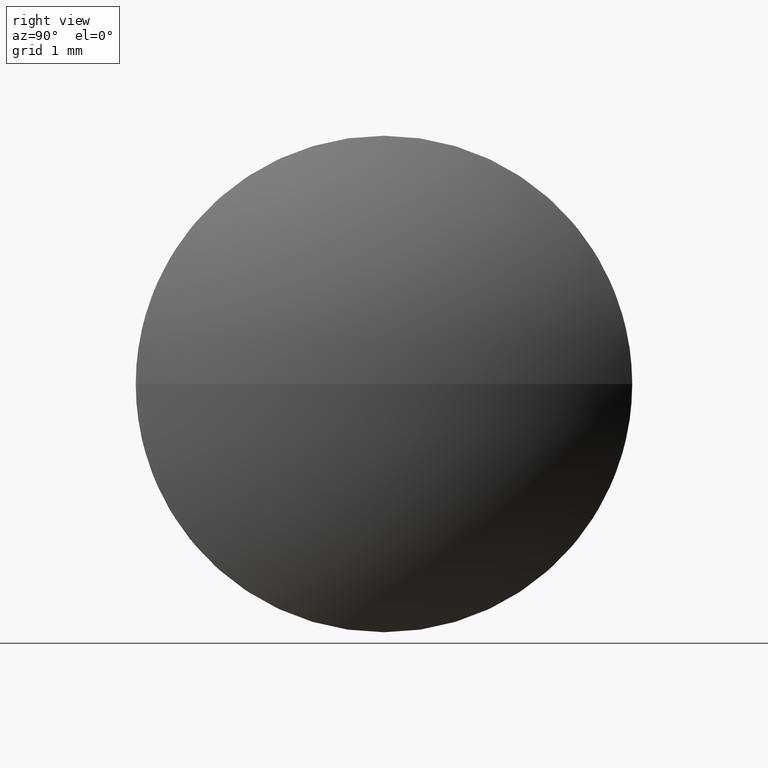
[diagram: clean part render]
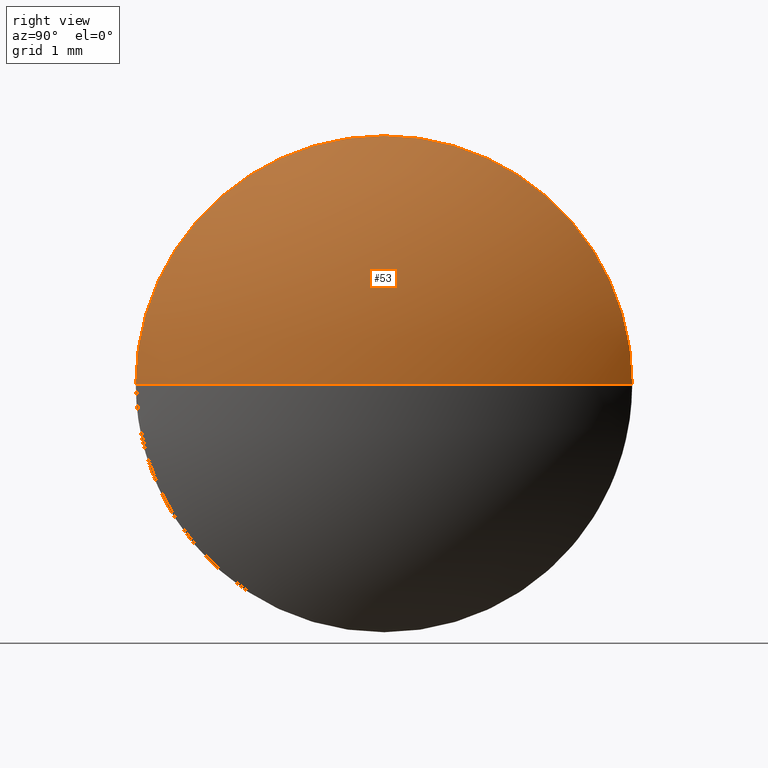
[diagram: same view with one face highlighted and labeled with its STEP entity id]
A machine part, right view. The second image highlights one B-rep face of the part: STEP entity #53.
In plain terms, the highlighted spherical surface has radius 5.1717 mm.
Its self-contained STEP definition (entity closure, byte-faithful):
#10 = CARTESIAN_POINT ( 'NONE',  ( 353.1020176784387000, 25.04791477200547300, 0.0000000000000000000 ) ) ;
#13 = CARTESIAN_POINT ( 'NONE',  ( 349.0003662362582900, 25.04791477200545200, 0.0000000000000000000 ) ) ;
#25 = CARTESIAN_POINT ( 'NONE',  ( 354.1720240510349500, 25.04791477200545200, 0.0000000000000000000 ) ) ;
#29 = VERTEX_POINT ( 'NONE', #132 ) ;
#37 = ORIENTED_EDGE ( 'NONE', *, *, #168, .F. ) ;
#38 = CARTESIAN_POINT ( 'NONE',  ( 353.1020176784387000, 21.89791477200547100, -3.857637417314142000E-016 ) ) ;
#41 = EDGE_CURVE ( 'NONE', #91, #60, #64, .T. ) ;
#46 = FACE_OUTER_BOUND ( 'NONE', #139, .T. ) ;
#50 = ORIENTED_EDGE ( 'NONE', *, *, #161, .T. ) ;
#53 = ADVANCED_FACE ( 'NONE', ( #46 ), #78, .T. ) ;
#59 = DIRECTION ( 'NONE',  ( -0.0000000000000000000, 0.0000000000000000000, 1.000000000000000000 ) ) ;
#60 = VERTEX_POINT ( 'NONE', #65 ) ;
#63 = DIRECTION ( 'NONE',  ( -0.0000000000000000000, 0.0000000000000000000, -1.000000000000000000 ) ) ;
#64 = CIRCLE ( 'NONE', #111, 3.149999999999996400 ) ;
#65 = CARTESIAN_POINT ( 'NONE',  ( 353.1020176784387000, 25.04791477200547300, 3.149999999999996400 ) ) ;
#66 = ORIENTED_EDGE ( 'NONE', *, *, #67, .F. ) ;
#67 = EDGE_CURVE ( 'NONE', #128, #91, #167, .T. ) ;
#71 = DIRECTION ( 'NONE',  ( 0.0000000000000000000, 0.0000000000000000000, 1.000000000000000000 ) ) ;
#78 = SPHERICAL_SURFACE ( 'NONE', #90, 5.171657814776648500 ) ;
#82 = DIRECTION ( 'NONE',  ( -1.000000000000000000, -0.0000000000000000000, -0.0000000000000000000 ) ) ;
#85 = AXIS2_PLACEMENT_3D ( 'NONE', #144, #156, #114 ) ;
#89 = DIRECTION ( 'NONE',  ( 1.000000000000000000, 0.0000000000000000000, 0.0000000000000000000 ) ) ;
#90 = AXIS2_PLACEMENT_3D ( 'NONE', #13, #63, #93 ) ;
#91 = VERTEX_POINT ( 'NONE', #38 ) ;
#93 = DIRECTION ( 'NONE',  ( 0.0000000000000000000, 1.000000000000000000, 0.0000000000000000000 ) ) ;
#96 = DIRECTION ( 'NONE',  ( 0.0000000000000000000, 0.0000000000000000000, 1.000000000000000000 ) ) ;
#103 = CARTESIAN_POINT ( 'NONE',  ( 353.1020176784387000, 25.04791477200547300, 0.0000000000000000000 ) ) ;
#111 = AXIS2_PLACEMENT_3D ( 'NONE', #10, #82, #96 ) ;
#114 = DIRECTION ( 'NONE',  ( 0.0000000000000000000, 1.000000000000000000, 1.224646799147353200E-016 ) ) ;
#126 = CIRCLE ( 'NONE', #151, 5.171657814776631700 ) ;
#128 = VERTEX_POINT ( 'NONE', #25 ) ;
#132 = CARTESIAN_POINT ( 'NONE',  ( 353.1020176784387000, 28.19791477200545800, 0.0000000000000000000 ) ) ;
#139 = EDGE_LOOP ( 'NONE', ( #66, #50, #37, #184 ) ) ;
#144 = CARTESIAN_POINT ( 'NONE',  ( 349.0003662362582900, 25.04791477200545200, 0.0000000000000000000 ) ) ;
#149 = CIRCLE ( 'NONE', #186, 3.149999999999996400 ) ;
#151 = AXIS2_PLACEMENT_3D ( 'NONE', #179, #59, #89 ) ;
#156 = DIRECTION ( 'NONE',  ( 0.0000000000000000000, 1.224646799147353200E-016, -1.000000000000000000 ) ) ;
#161 = EDGE_CURVE ( 'NONE', #128, #29, #126, .T. ) ;
#166 = DIRECTION ( 'NONE',  ( -1.000000000000000000, -0.0000000000000000000, -0.0000000000000000000 ) ) ;
#167 = CIRCLE ( 'NONE', #85, 5.171657814776648500 ) ;
#168 = EDGE_CURVE ( 'NONE', #60, #29, #149, .T. ) ;
#179 = CARTESIAN_POINT ( 'NONE',  ( 349.0003662362582900, 25.04791477200545200, 0.0000000000000000000 ) ) ;
#184 = ORIENTED_EDGE ( 'NONE', *, *, #41, .F. ) ;
#186 = AXIS2_PLACEMENT_3D ( 'NONE', #103, #166, #71 ) ;